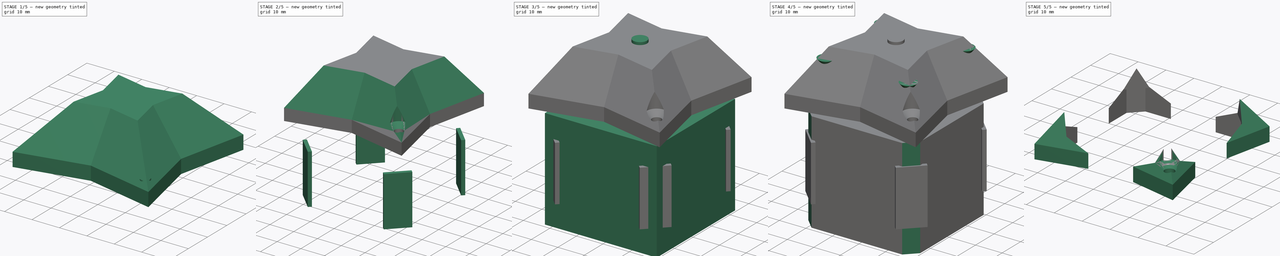
[diagram: build sequence overview — one tinted view per stage of 5, left to right]
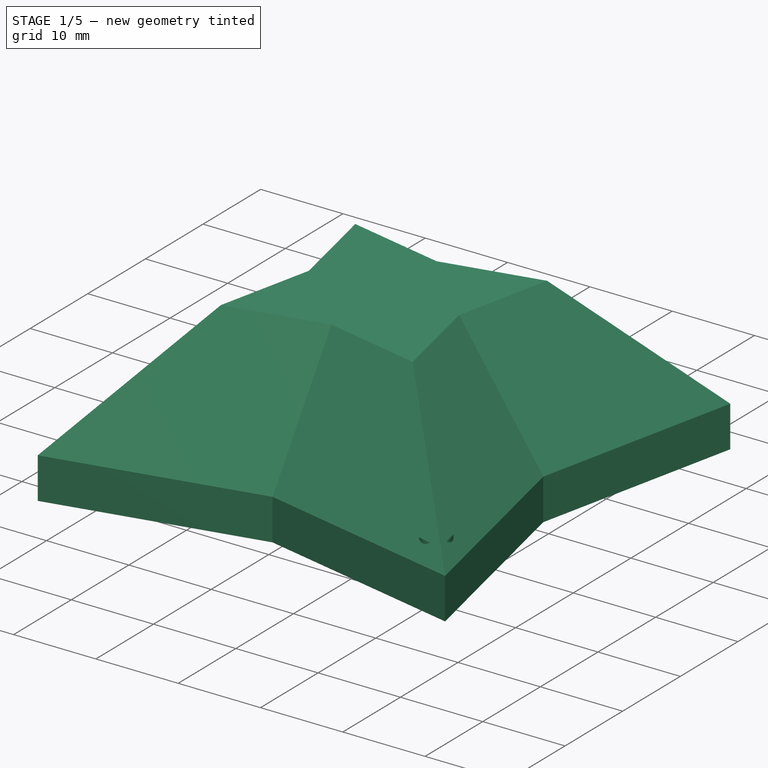
[diagram: stage 1 of 5 — iso view after this stage's code; geometry added in this stage tinted green]
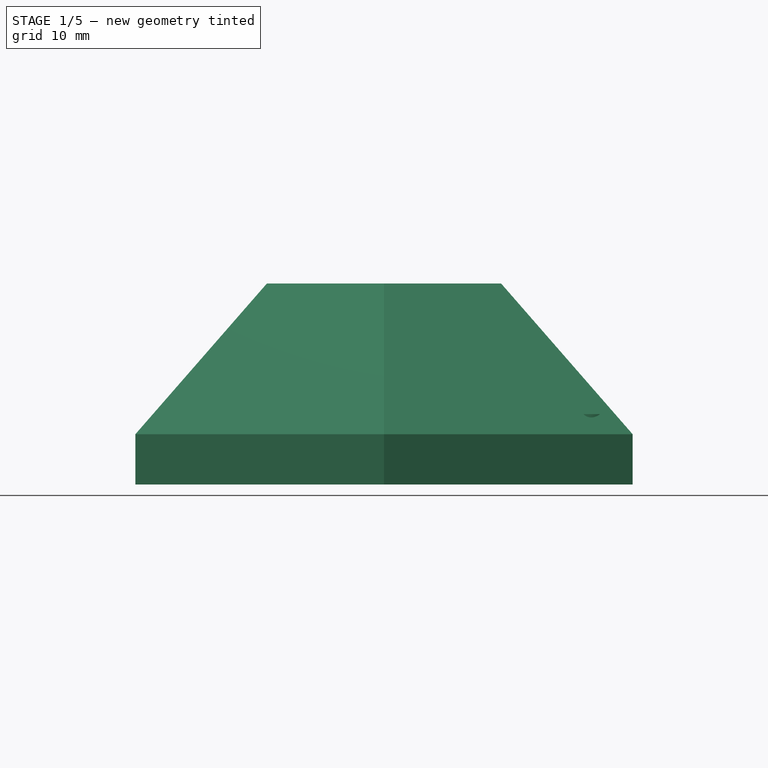
[diagram: stage 1 of 5 — front view after this stage's code; geometry added in this stage tinted green]
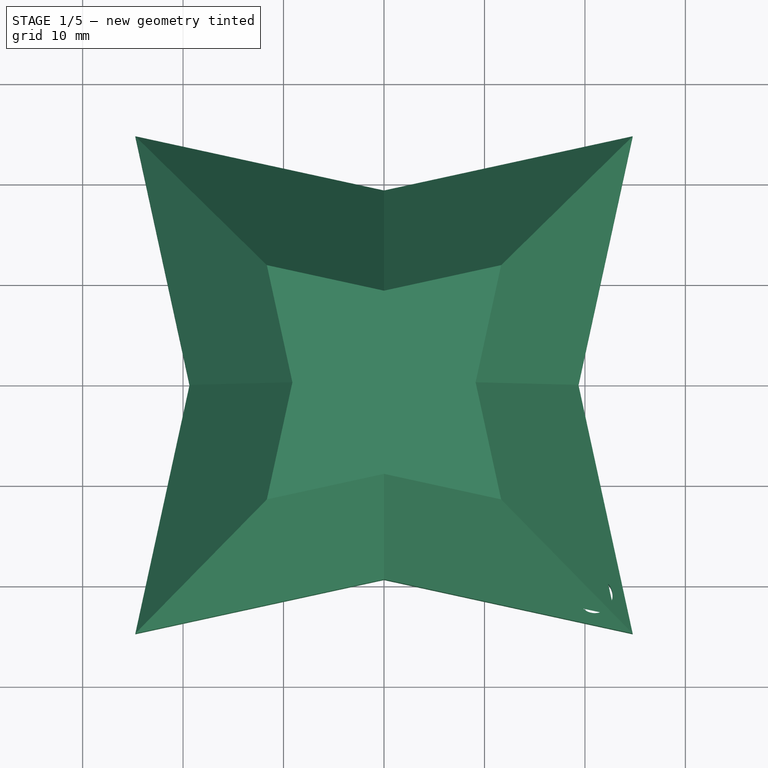
[diagram: stage 1 of 5 — top view after this stage's code; geometry added in this stage tinted green]
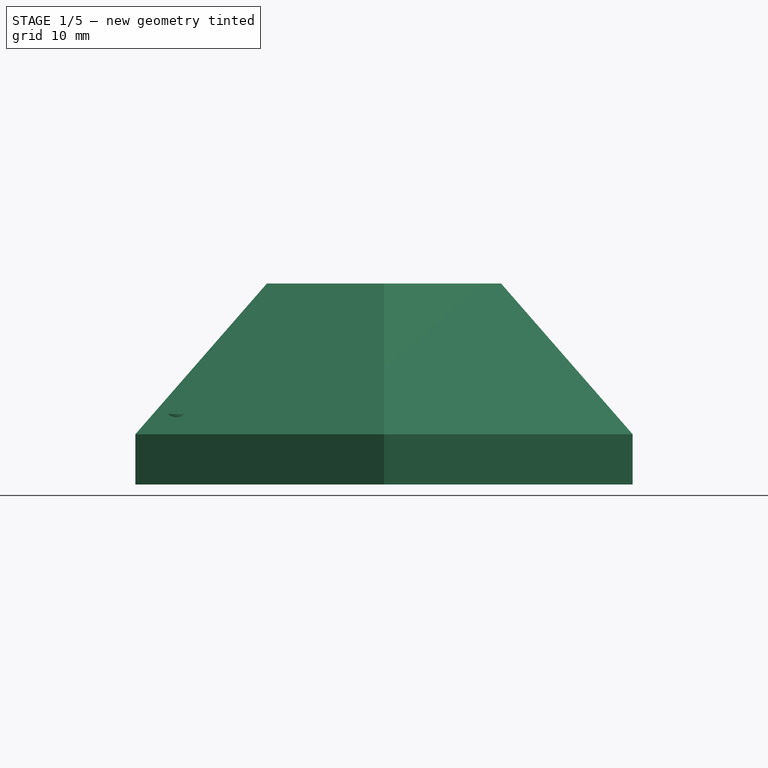
[diagram: stage 1 of 5 — right view after this stage's code; geometry added in this stage tinted green]
FCSTD DOCUMENT  (FreeCAD 0.19R24291 (Git))
Label: Peristaltic Pump Holder
License: All rights reserved
LicenseURL: http://en.wikipedia.org/wiki/All_rights_reserved
objects: PartDesign::AdditiveCylinder×3, PartDesign::Chamfer×2, PartDesign::Body×2, Part::Cut×2, PartDesign::SubtractiveCylinder×2, PartDesign::AdditiveBox×1, PartDesign::AdditiveCone×1, PartDesign::PolarPattern×1, PartDesign::MultiTransform×1, PartDesign::SubtractiveBox×1, Part::Box×1, Part::FeaturePython×1, Sketcher::SketchObject×1, PartDesign::Pad×1, PartDesign::SubtractiveCone×1
note: 32 computed .brp shape members not serialized (recipe doc carries the construction recipe); baked Part::Feature solids carry a one-line shape summary decoded from their .brp

FEATURE [Sketcher::SketchObject] Sketch
  FullyConstrained = false
  MapMode = 2
  sketch-geometry (10):
    g0: LineSegment StartX=24.7487 StartY=24.7487 StartZ=0 EndX=0 EndY=19.3528 EndZ=0
    g1: LineSegment StartX=0 StartY=19.3528 StartZ=0 EndX=-24.7487 EndY=24.7487 EndZ=0
    g2: LineSegment StartX=-24.7487 StartY=24.7487 StartZ=0 EndX=-19.3528 EndY=-3.6e-15 EndZ=0
    g3: LineSegment StartX=-19.3528 StartY=-3.6e-15 StartZ=0 EndX=-24.7487 EndY=-24.7487 EndZ=0
    g4: LineSegment StartX=-24.7487 StartY=-24.7487 StartZ=0 EndX=3.6e-15 EndY=-19.3528 EndZ=0
    g5: LineSegment StartX=3.6e-15 StartY=-19.3528 StartZ=0 EndX=24.7487 EndY=-24.7487 EndZ=0
    g6: LineSegment StartX=24.7487 StartY=-24.7487 StartZ=0 EndX=19.3528 EndY=0 EndZ=0
    g7: LineSegment StartX=19.3528 StartY=0 StartZ=0 EndX=24.7487 EndY=24.7487 EndZ=0
    g8: Circle CenterX=0 CenterY=0 CenterZ=0 NormalX=0 NormalY=0 NormalZ=1 AngleXU=0 Radius=35
    g9: Circle CenterX=0 CenterY=0 CenterZ=0 NormalX=0 NormalY=0 NormalZ=1 AngleXU=0 Radius=19.3528
  constraints (28):
    c: Coincident(g0,g1)
    c: Coincident(g1,g2)
    c: Coincident(g2,g3)
    c: Coincident(g3,g4)
    c: Coincident(g4,g5)
    c: Coincident(g5,g6)
    c: Coincident(g7,g0)
    c: PointOnObject(g3,g8)
    c: PointOnObject(g5,g8)
    c: PointOnObject(g7,g8)
    c: PointOnObject(g8,g-1)
    c: PointOnObject(g8,g-2)
    c: Coincident(g9,g-1)
    c: PointOnObject(g1,g8)
    c: Coincident(g6,g7)
    c: PointOnObject(g4,g9)
    c: PointOnObject(g0,g9)
    c: PointOnObject(g2,g9)
    c: PointOnObject(g6,g9)
    c: Equal(g1,g2)
    c: Equal(g2,g0)
    c: Equal(g0,g7)
    c: Equal(g7,g6)
    c: Equal(g6,g5)
    c: Equal(g5,g4)
    c: Equal(g4,g3)
    c: PointOnObject(g0,g-2)
    c: Radius(g8) = 35
FEATURE [PartDesign::Pad] Pad
  Direction = (1,1,1)
  Length = 20
  Length2 = 100
  Profile = -> Sketch
  Type = 0
FEATURE [PartDesign::Chamfer] Chamfer001
  Angle = 45
  Base = -> Pad [Face10]
  BaseFeature = -> Pad
  ChamferType = 1
  FlipDirection = false
  Size = 15
  Size2 = 10
  SupportTransform = false
FEATURE [PartDesign::SubtractiveCylinder] Cylinder003
  Angle = 360
  AttacherType = Attacher::AttachEngine3D
  AttachmentOffset = pos=(21,-21,-23) rot=(0,0,1;0rad)
  BaseFeature = -> Chamfer001
  Height = 10
  MapMode = 5
  Placement = pos=(21,-21,-3) rot=(0,0,1;0rad)
  Radius = 1.75
  Support = -> [Chamfer001]
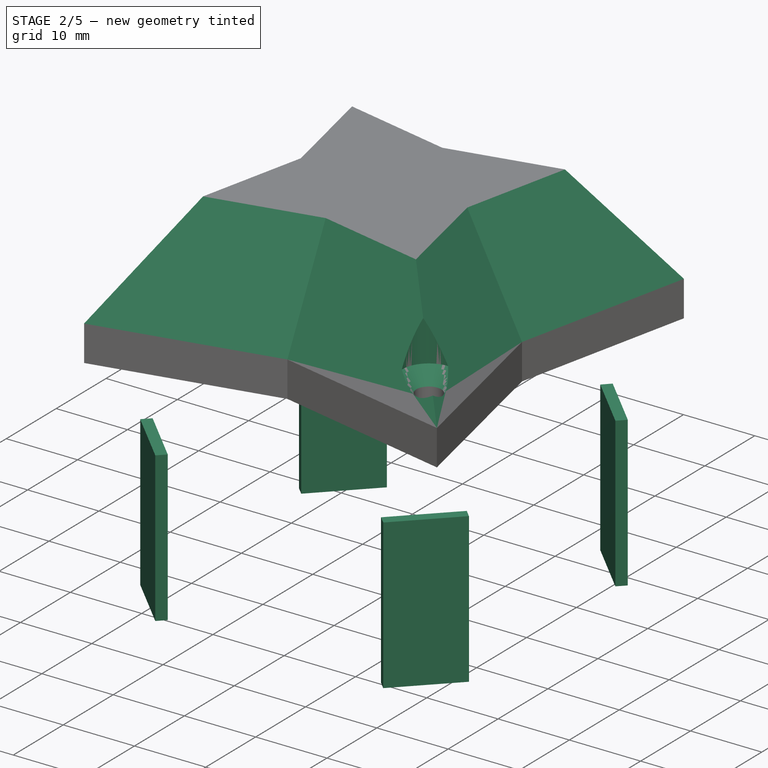
[diagram: stage 2 of 5 — iso view after this stage's code; geometry added in this stage tinted green]
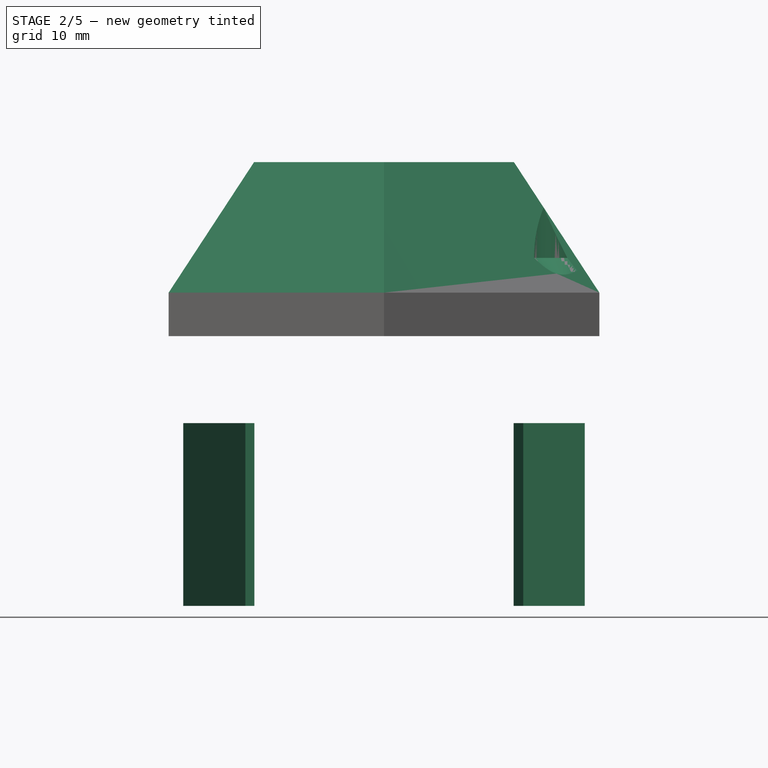
[diagram: stage 2 of 5 — front view after this stage's code; geometry added in this stage tinted green]
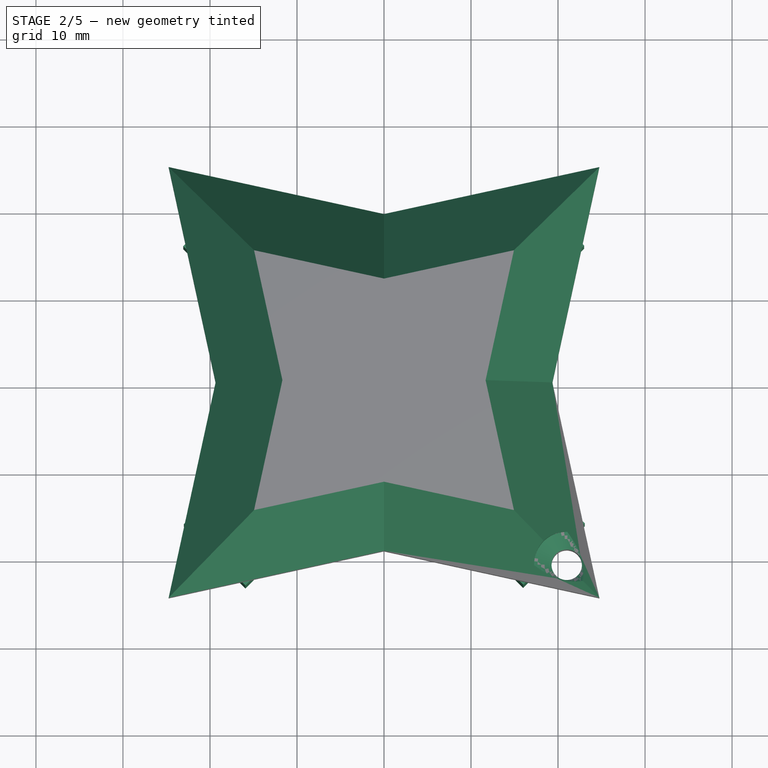
[diagram: stage 2 of 5 — top view after this stage's code; geometry added in this stage tinted green]
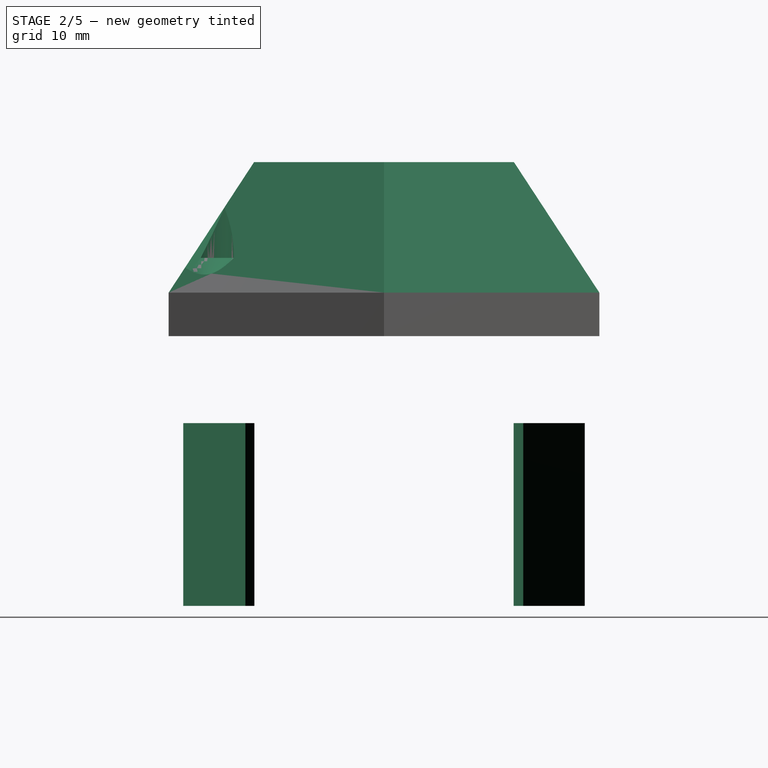
[diagram: stage 2 of 5 — right view after this stage's code; geometry added in this stage tinted green]
FEATURE [PartDesign::Body] Body
  Group = -> [Cylinder,Cylinder001,Box,Chamfer,Cylinder002,Cone,MultiTransform,PolarPattern,Box001]
  Origin = -> Origin
  Placement = pos=(0,0,1) rot=(0,0,-1;1.5708rad)
  Tip = -> Box001
FEATURE [Part::Box] Box002  label="Cube"
  AttacherType = Attacher::AttachEngine3D
  Height = 21
  Length = 10
  Placement = pos=(16,-23,-31) rot=(0,0,1;0.785398rad)
  Width = 1.45
FEATURE [Part::FeaturePython] Array  # Draft array (typed FeaturePython)
  Angle = 360
  ArrayType = 1
  Axis = (0,0,1)
  Base = -> Box002
  Center = (0,0,0)
  Count = 4
  ExpandArray = false
  Fuse = false
  IntervalAxis = (0,0,0)
  IntervalX = (50,0,0)
  IntervalY = (0,50,0)
  IntervalZ = (0,0,50)
  NumberCircles = 3
  NumberPolar = 4
  NumberX = 2
  NumberY = 2
  NumberZ = 1
  PlacementList = 4 placements: [(16,-23,-31),(23,16,-31),(-16,23,-31),(-23,-16,-31)]
  RadialDistance = 50
  ScaleList = (4) [(1,1,1),(1,1,1),(1,1,1),(1,1,1)]
  Symmetry = 1
  TangentialDistance = 25
FEATURE [PartDesign::SubtractiveCone] Cone001
  Angle = 360
  AttacherType = Attacher::AttachEngine3D
  BaseFeature = -> Cylinder003
  Height = 2
  MapMode = 2
  Placement = pos=(21,-21,-3) rot=(0,1,0;3.14159rad)
  Radius1 = 1.75
  Radius2 = 3.75
  Support = -> [Cylinder003]
FEATURE [PartDesign::SubtractiveCylinder] Cylinder004
  Angle = 360
  AttacherType = Attacher::AttachEngine3D
  BaseFeature = -> Cone001
  Height = 20
  MapMode = 5
  Placement = pos=(21,-21,9) rot=(0,0,1;0rad)
  Radius = 3.75
  Support = -> [Cone001]
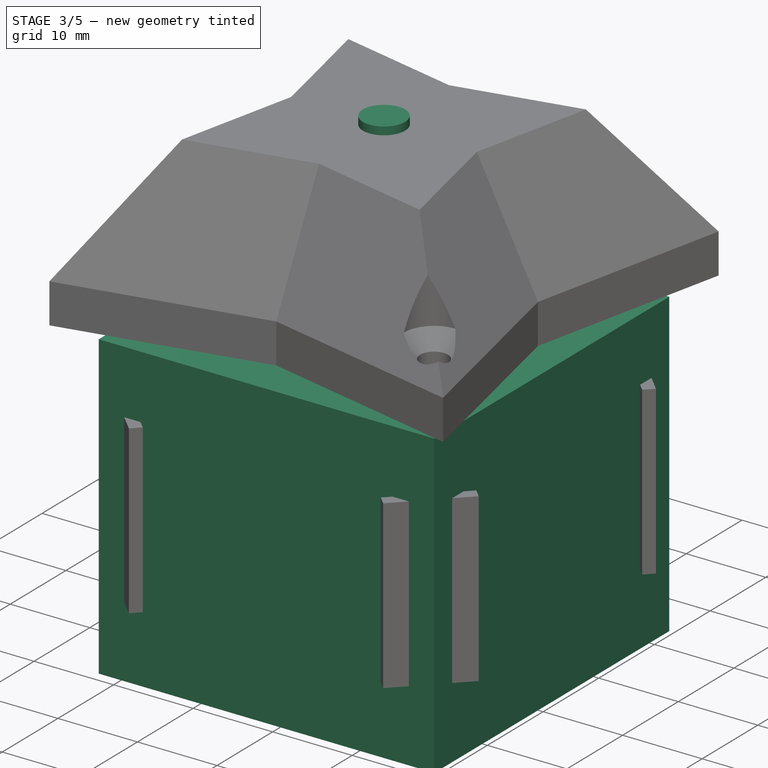
[diagram: stage 3 of 5 — iso view after this stage's code; geometry added in this stage tinted green]
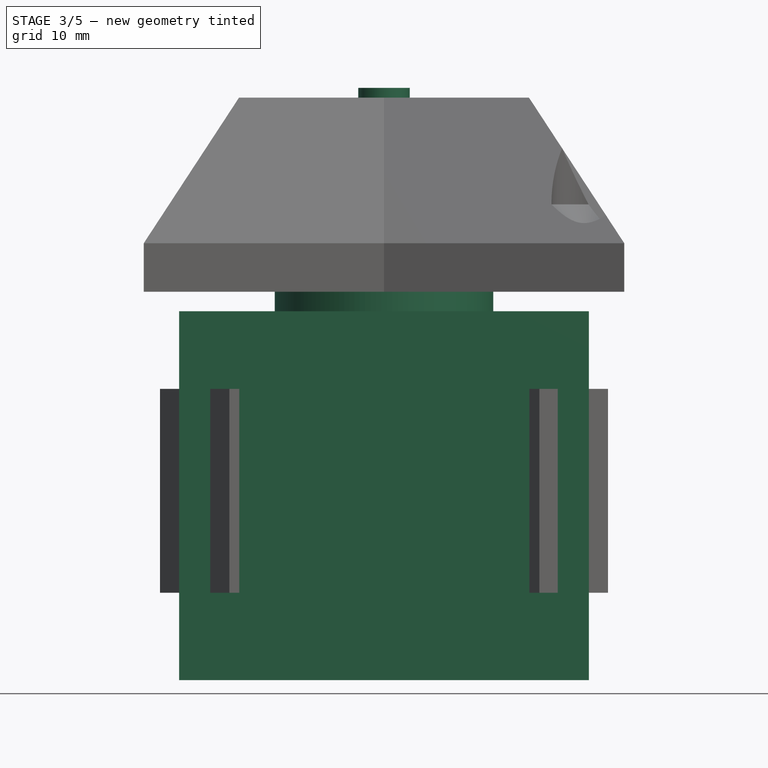
[diagram: stage 3 of 5 — front view after this stage's code; geometry added in this stage tinted green]
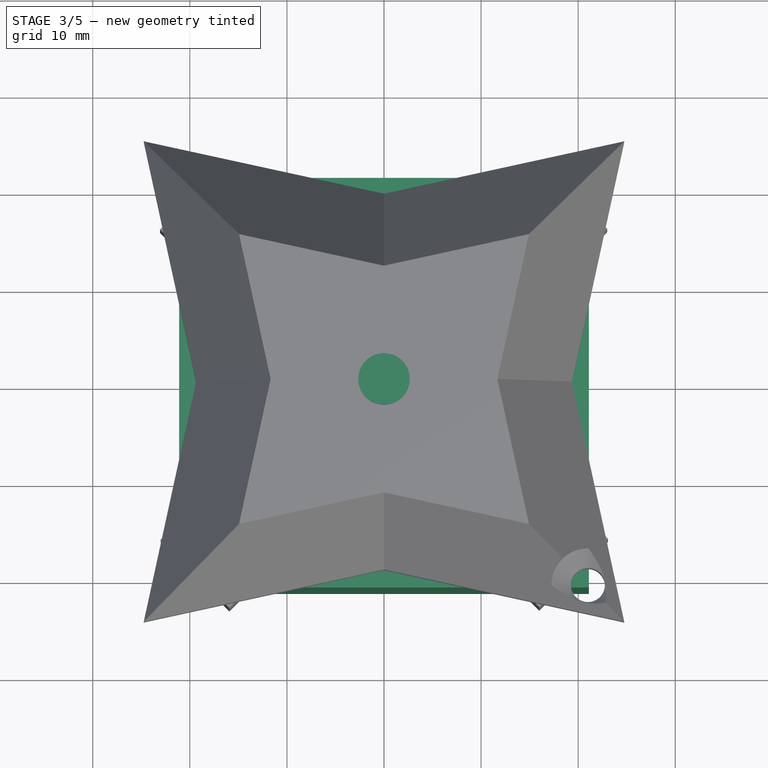
[diagram: stage 3 of 5 — top view after this stage's code; geometry added in this stage tinted green]
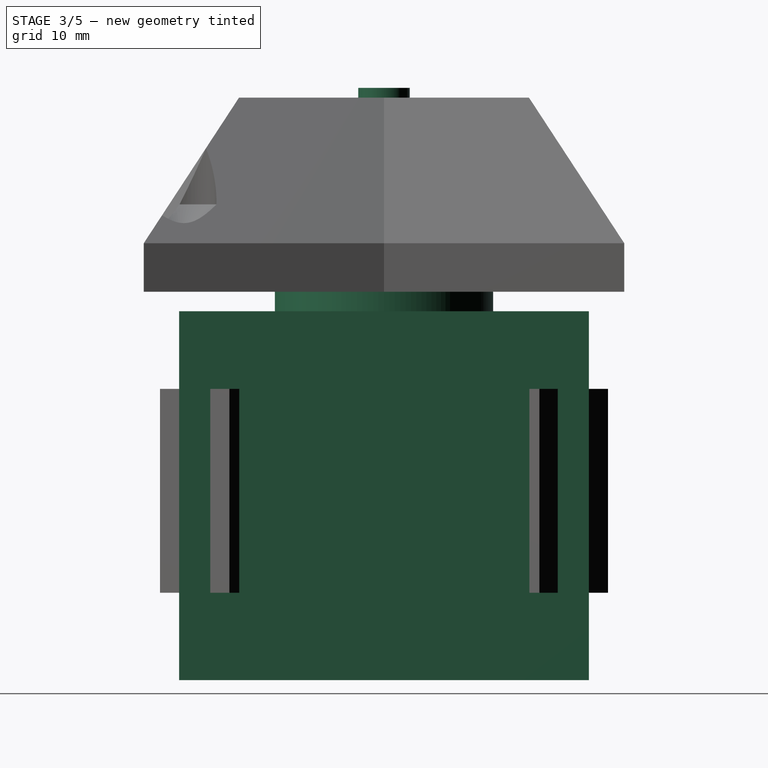
[diagram: stage 3 of 5 — right view after this stage's code; geometry added in this stage tinted green]
FEATURE [PartDesign::AdditiveCylinder] Cylinder
  Angle = 360
  AttacherType = Attacher::AttachEngine3D
  Height = 21
  Radius = 2.65
FEATURE [PartDesign::AdditiveCylinder] Cylinder001
  Angle = 360
  AttacherType = Attacher::AttachEngine3D
  BaseFeature = -> Cylinder
  Height = 2
  MapMode = 5
  Placement = pos=(0,0,0) rot=(1,0,0;3.14159rad)
  Radius = 11.25
  Support = -> [Cylinder]
FEATURE [PartDesign::AdditiveBox] Box
  AttacherType = Attacher::AttachEngine3D
  AttachmentOffset = pos=(-21.1,-21.1,0) rot=(0,0,1;0rad)
  BaseFeature = -> Cylinder001
  Height = 38
  Length = 42.2
  MapMode = 5
  Placement = pos=(-21.1,21.1,-2) rot=(1,0,0;3.14159rad)
  Support = -> [Cylinder001]
  Width = 42.2
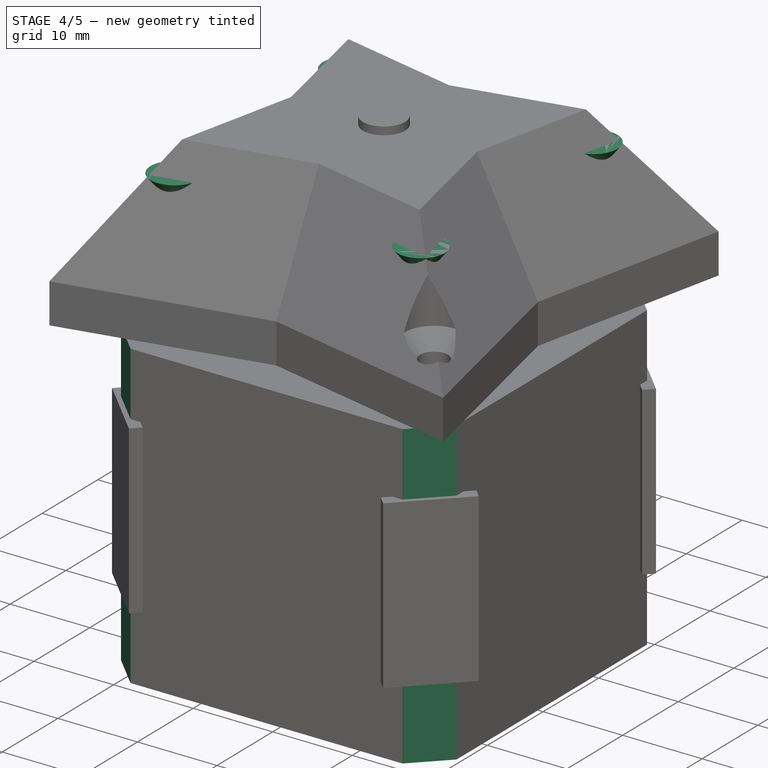
[diagram: stage 4 of 5 — iso view after this stage's code; geometry added in this stage tinted green]
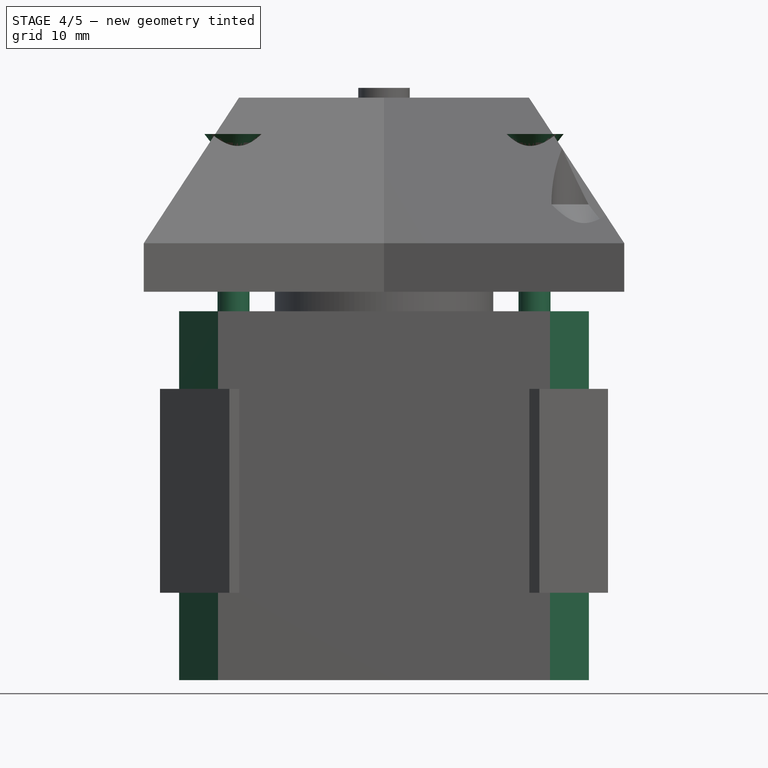
[diagram: stage 4 of 5 — front view after this stage's code; geometry added in this stage tinted green]
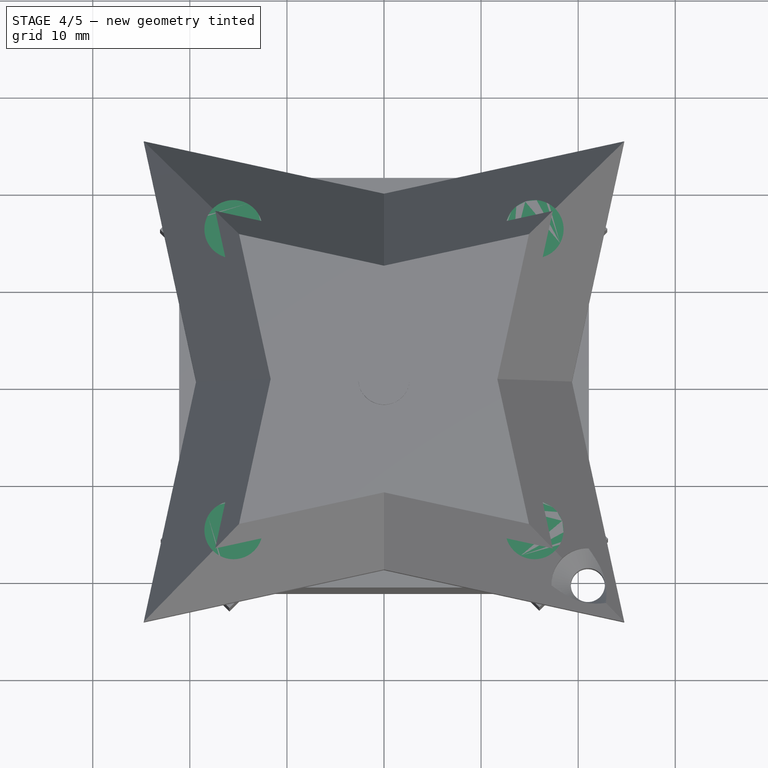
[diagram: stage 4 of 5 — top view after this stage's code; geometry added in this stage tinted green]
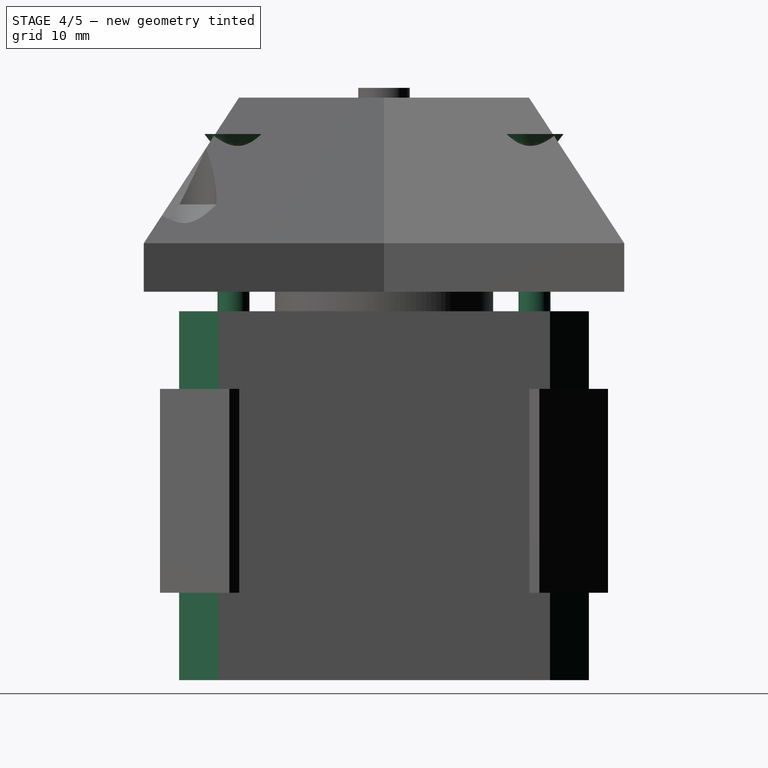
[diagram: stage 4 of 5 — right view after this stage's code; geometry added in this stage tinted green]
FEATURE [PartDesign::Chamfer] Chamfer
  Angle = 45
  Base = -> Box [Edge1,Edge3,Edge11,Edge6]
  BaseFeature = -> Box
  ChamferType = 0
  FlipDirection = false
  Placement = pos=(-21.1,21.1,-2) rot=(1,0,0;3.14159rad)
  Size = 4
  Size2 = 1
  SupportTransform = false
FEATURE [PartDesign::AdditiveCylinder] Cylinder002
  Angle = 360
  AttacherType = Attacher::AttachEngine3D
  AttachmentOffset = pos=(-15.5,-15.5,-2) rot=(0,0,1;0rad)
  BaseFeature = -> Chamfer
  Height = 16.5
  MapMode = 5
  Placement = pos=(-15.5,-15.5,-2) rot=(0,0,1;0rad)
  Radius = 1.65
  Support = -> [XY_Plane]
FEATURE [PartDesign::AdditiveCone] Cone
  Angle = 360
  AttacherType = Attacher::AttachEngine3D
  BaseFeature = -> Cylinder002
  Height = 1.75
  MapMode = 5
  Placement = pos=(-15.5,-15.5,14.5) rot=(0,0,1;0rad)
  Radius1 = 1.65
  Radius2 = 3
  Support = -> [Cylinder002]
FEATURE [PartDesign::PolarPattern] PolarPattern
  Angle = 360
  Axis = -> Z_Axis
  Occurrences = 4
  Placement = pos=(-15.5,-15.5,14.5) rot=(0,0,1;0rad)
FEATURE [PartDesign::MultiTransform] MultiTransform
  BaseFeature = -> Cone
  Originals = -> [Cylinder002,Cone]
  Placement = pos=(-15.5,-15.5,14.5) rot=(0,0,1;0rad)
  Transformations = -> [PolarPattern]
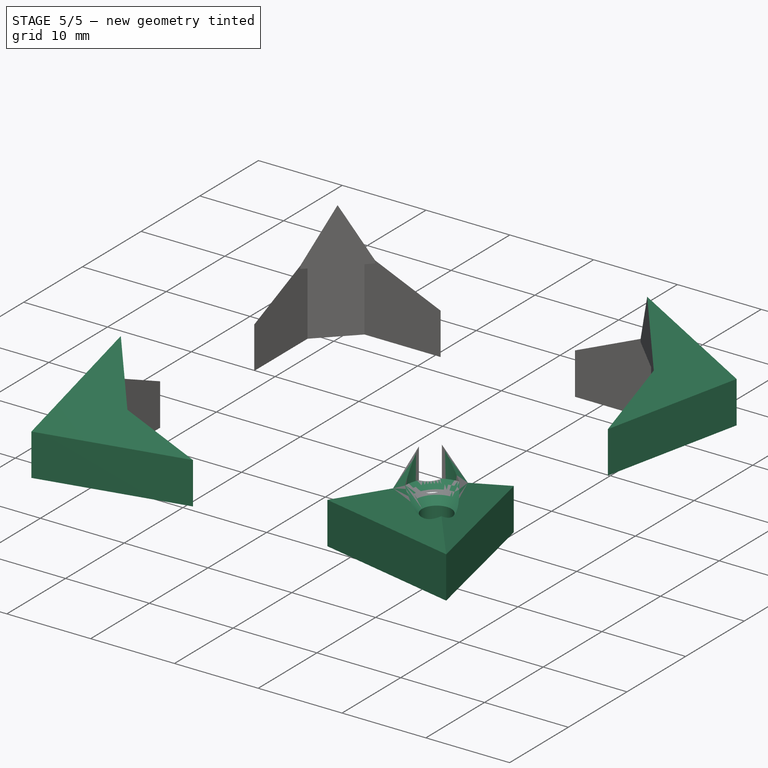
[diagram: stage 5 of 5 — iso view after this stage's code; geometry added in this stage tinted green]
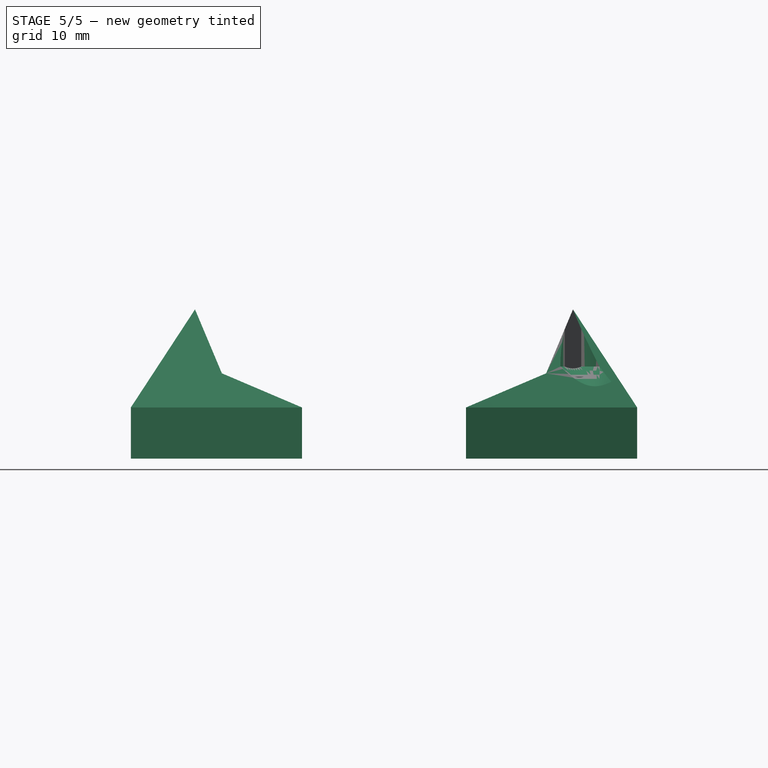
[diagram: stage 5 of 5 — front view after this stage's code; geometry added in this stage tinted green]
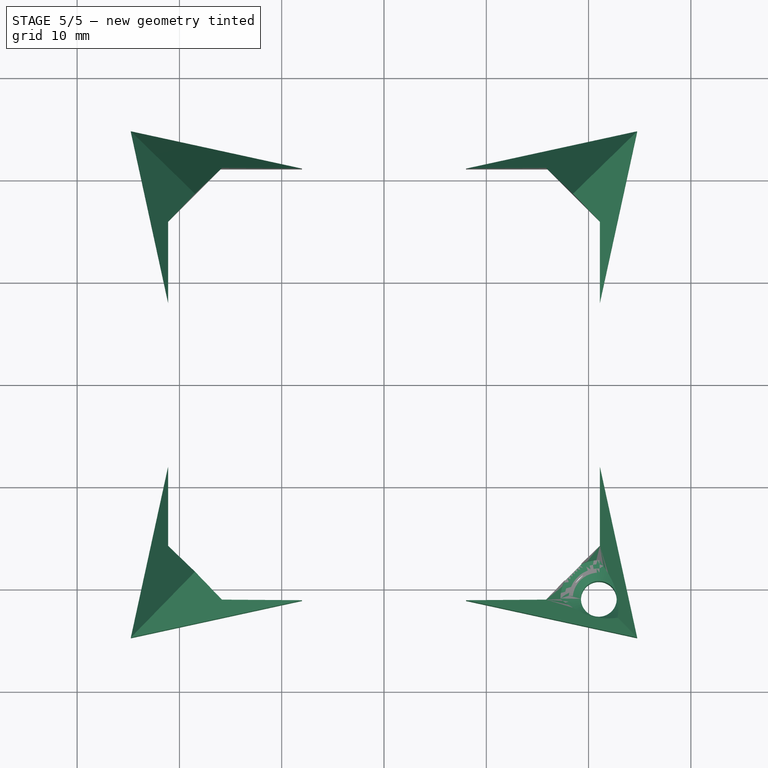
[diagram: stage 5 of 5 — top view after this stage's code; geometry added in this stage tinted green]
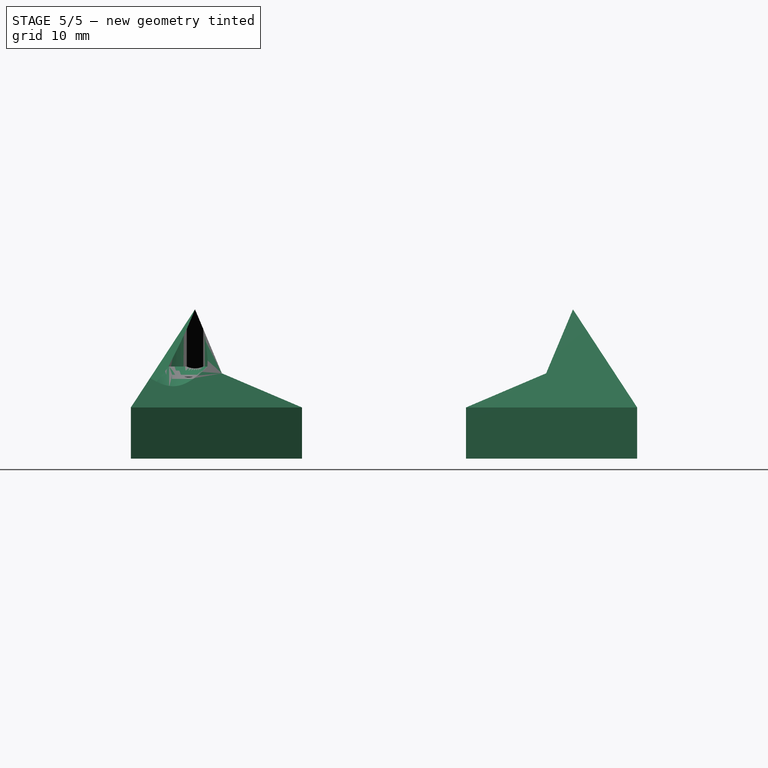
[diagram: stage 5 of 5 — right view after this stage's code; geometry added in this stage tinted green]
FEATURE [PartDesign::SubtractiveBox] Box001
  AttacherType = Attacher::AttachEngine3D
  AttachmentOffset = pos=(3.15,-4,-2.5) rot=(0,0,1;0rad)
  BaseFeature = -> MultiTransform
  Height = 5
  Length = 17.85
  MapMode = 2
  Placement = pos=(-4,-2.5,3.15) rot=(0.57735,0.57735,0.57735;4.18879rad)
  Support = -> [Z_Axis]
  Width = 2.1
FEATURE [Part::Cut] Cut
  Base = -> Body
  Tool = -> Array
FEATURE [PartDesign::Body] Body001
  Group = -> [Sketch,Pad,Chamfer001,Cylinder003,Cone001,Cylinder004]
  Origin = -> Origin001
  Placement = pos=(0,0,-39) rot=(0,0,1;0rad)
  Tip = -> Cylinder004
FEATURE [Part::Cut] Cut001
  Base = -> Body001
  Tool = -> Cut
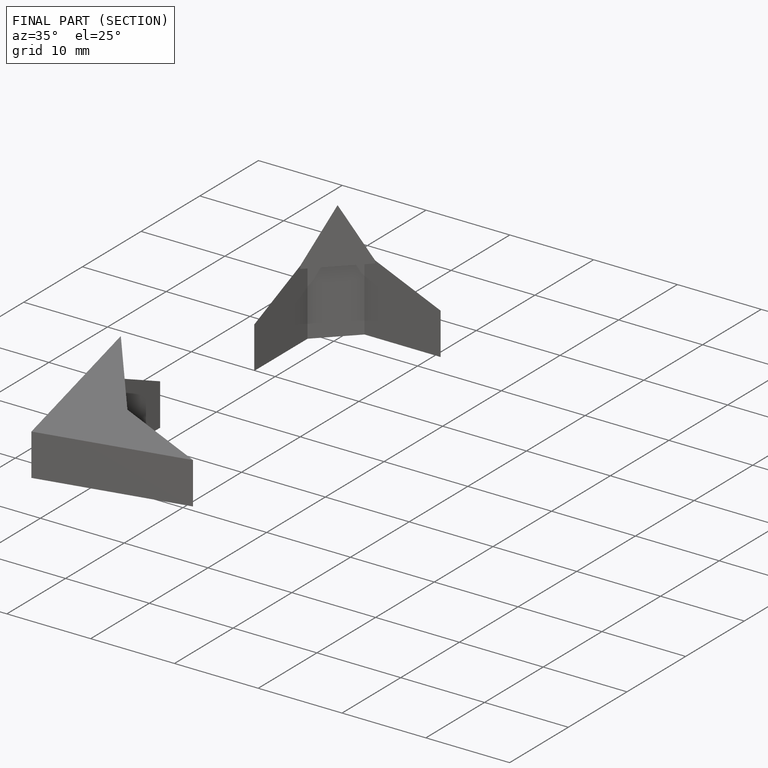
[diagram: finished part — half-section view (interior)]
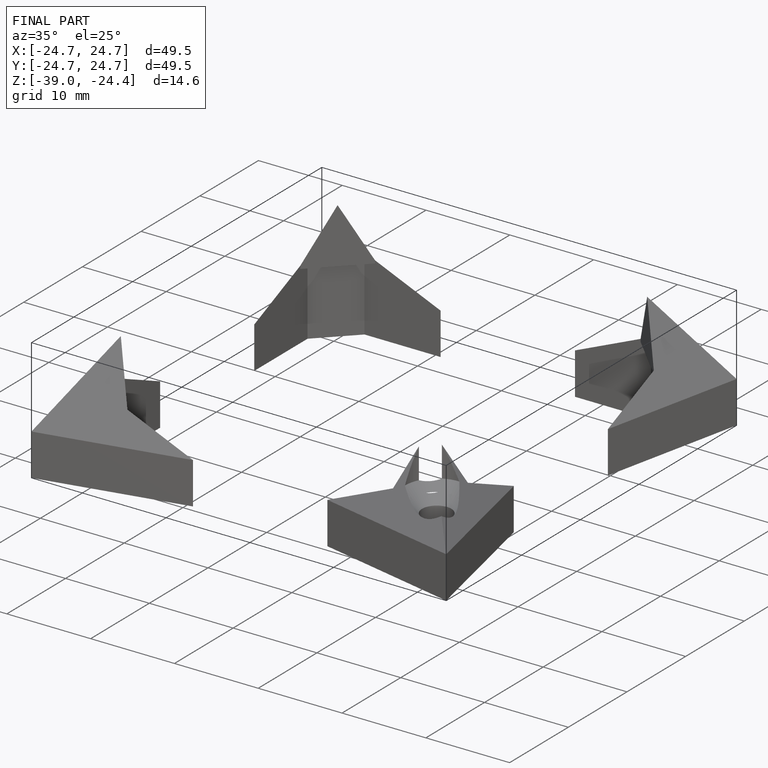
[diagram: finished part — iso view with bounding-box wireframe]
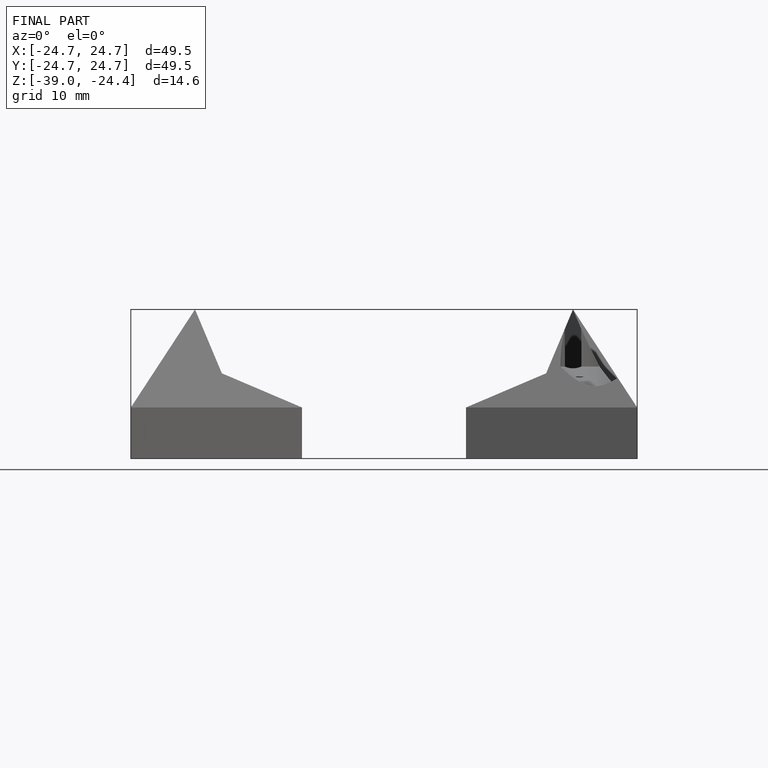
[diagram: finished part — front view with bounding-box wireframe]
